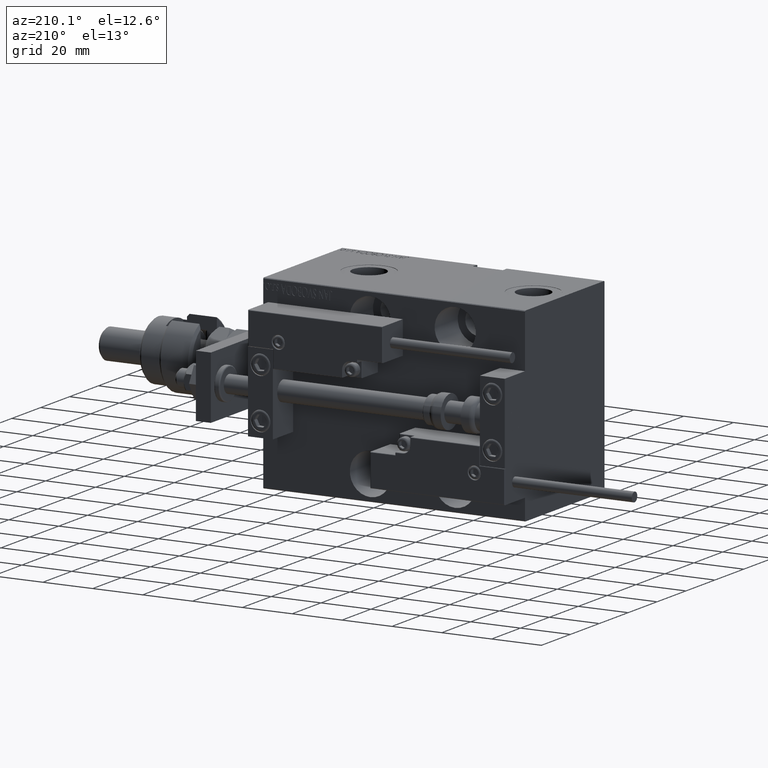
[diagram: clean part render]
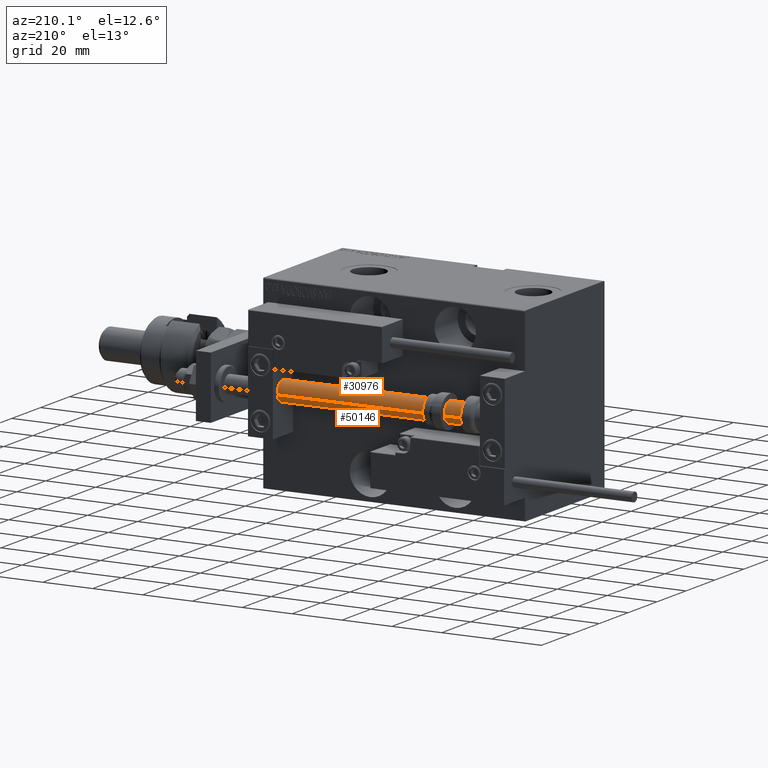
[diagram: same view with one multi-face feature highlighted, each face labeled with its STEP entity id]
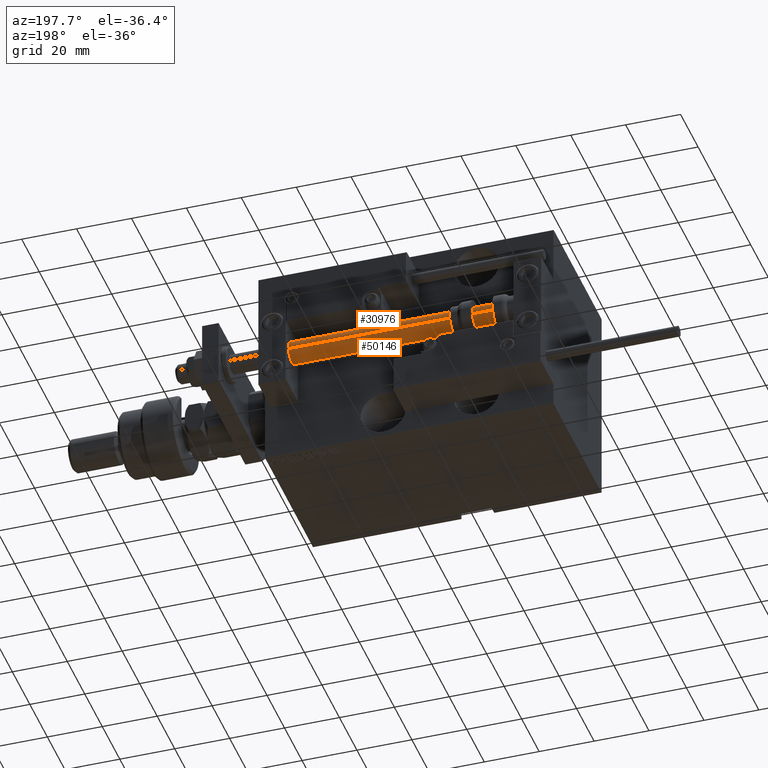
[diagram: same view with one multi-face feature highlighted, each face labeled with its STEP entity id]
A machine part, auxiliary view. The highlighted faces form ONE feature: a constant-radius fillet chain: 2 tangent blend faces with common blend radius 4 mm. The faces share edges in the B-rep.
A second angle (auxiliary view) of the same feature is appended — it is thin or edge-on in the first view.
Their STEP definitions:
[1] entity #50146 (Cylinder):
#402 = DIRECTION ( 'NONE',  ( 1.000000000000000000, 0.000000000000000000, 0.000000000000000000 ) ) ;
#653 = ORIENTED_EDGE ( 'NONE', *, *, #975, .F. ) ;
#975 = EDGE_CURVE ( 'NONE', #35196, #7315, #39113, .T. ) ;
#1119 = VERTEX_POINT ( 'NONE', #15255 ) ;
#1442 = DIRECTION ( 'NONE',  ( -0.000000000000000000, -0.000000000000000000, -1.000000000000000000 ) ) ;
#1579 = VECTOR ( 'NONE', #39067, 1000.000000000000000 ) ;
#3237 = CARTESIAN_POINT ( 'NONE',  ( 0.000000000000000000, 0.000000000000000000, 2.000000000000029310 ) ) ;
#6643 = LINE ( 'NONE', #14669, #1579 ) ;
#7315 = VERTEX_POINT ( 'NONE', #14645 ) ;
#8434 = DIRECTION ( 'NONE',  ( 0.000000000000000000, 0.000000000000000000, 1.000000000000000000 ) ) ;
#10747 = DIRECTION ( 'NONE',  ( -0.000000000000000000, -0.000000000000000000, 1.000000000000000000 ) ) ;
#13245 = ORIENTED_EDGE ( 'NONE', *, *, #29929, .T. ) ;
#14645 = CARTESIAN_POINT ( 'NONE',  ( -4.000000000000000000, 0.000000000000000000, 105.0000000000000000 ) ) ;
#14669 = CARTESIAN_POINT ( 'NONE',  ( 4.000000000000000000, 4.898587196589412829E-16, 105.0000000000000000 ) ) ;
#15255 = CARTESIAN_POINT ( 'NONE',  ( 4.000000000000000000, 4.898587196589412829E-16, 2.000000000000029310 ) ) ;
#17496 = CARTESIAN_POINT ( 'NONE',  ( 0.000000000000000000, 0.000000000000000000, 105.0000000000000000 ) ) ;
#18025 = DIRECTION ( 'NONE',  ( -1.000000000000000000, 0.000000000000000000, 0.000000000000000000 ) ) ;
#18544 = FACE_OUTER_BOUND ( 'NONE', #51843, .T. ) ;
#20036 = AXIS2_PLACEMENT_3D ( 'NONE', #17496, #1442, #18025 ) ;
#25235 = EDGE_CURVE ( 'NONE', #1119, #36170, #51716, .T. ) ;
#26070 = CYLINDRICAL_SURFACE ( 'NONE', #20036, 4.000000000000000000 ) ;
#29929 = EDGE_CURVE ( 'NONE', #35196, #1119, #6643, .T. ) ;
#32265 = ORIENTED_EDGE ( 'NONE', *, *, #25235, .T. ) ;
#32878 = AXIS2_PLACEMENT_3D ( 'NONE', #3237, #10747, #51453 ) ;
#35196 = VERTEX_POINT ( 'NONE', #46203 ) ;
#35596 = LINE ( 'NONE', #44696, #46426 ) ;
#36170 = VERTEX_POINT ( 'NONE', #51785 ) ;
#39067 = DIRECTION ( 'NONE',  ( -0.000000000000000000, -0.000000000000000000, -1.000000000000000000 ) ) ;
#39113 = CIRCLE ( 'NONE', #45961, 4.000000000000000000 ) ;
#40680 = DIRECTION ( 'NONE',  ( -0.000000000000000000, -0.000000000000000000, -1.000000000000000000 ) ) ;
#41849 = EDGE_CURVE ( 'NONE', #7315, #36170, #35596, .T. ) ;
#44696 = CARTESIAN_POINT ( 'NONE',  ( -4.000000000000000000, 0.000000000000000000, 105.0000000000000000 ) ) ;
#45112 = ORIENTED_EDGE ( 'NONE', *, *, #41849, .F. ) ;
#45394 = CARTESIAN_POINT ( 'NONE',  ( 0.000000000000000000, 0.000000000000000000, 105.0000000000000000 ) ) ;
#45961 = AXIS2_PLACEMENT_3D ( 'NONE', #45394, #8434, #402 ) ;
#46203 = CARTESIAN_POINT ( 'NONE',  ( 4.000000000000000000, 4.898587196589412829E-16, 105.0000000000000000 ) ) ;
#46426 = VECTOR ( 'NONE', #40680, 1000.000000000000000 ) ;
#50146 = ADVANCED_FACE ( 'NONE', ( #18544 ), #26070, .T. ) ;
#51453 = DIRECTION ( 'NONE',  ( 1.000000000000000000, 0.000000000000000000, 0.000000000000000000 ) ) ;
#51716 = CIRCLE ( 'NONE', #32878, 4.000000000000000000 ) ;
#51785 = CARTESIAN_POINT ( 'NONE',  ( -4.000000000000000000, 0.000000000000000000, 2.000000000000029310 ) ) ;
#51843 = EDGE_LOOP ( 'NONE', ( #653, #13245, #32265, #45112 ) ) ;
[2] entity #30976 (Cylinder):
#84 = CIRCLE ( 'NONE', #47935, 4.000000000000000000 ) ;
#1119 = VERTEX_POINT ( 'NONE', #15255 ) ;
#1579 = VECTOR ( 'NONE', #39067, 1000.000000000000000 ) ;
#1965 = ORIENTED_EDGE ( 'NONE', *, *, #43135, .T. ) ;
#6202 = DIRECTION ( 'NONE',  ( -0.000000000000000000, -0.000000000000000000, 1.000000000000000000 ) ) ;
#6643 = LINE ( 'NONE', #14669, #1579 ) ;
#6976 = EDGE_LOOP ( 'NONE', ( #39936, #16888, #19869, #1965 ) ) ;
#7315 = VERTEX_POINT ( 'NONE', #14645 ) ;
#7804 = FACE_OUTER_BOUND ( 'NONE', #6976, .T. ) ;
#12074 = DIRECTION ( 'NONE',  ( -1.000000000000000000, 0.000000000000000000, 0.000000000000000000 ) ) ;
#12213 = AXIS2_PLACEMENT_3D ( 'NONE', #42203, #6202, #16981 ) ;
#14645 = CARTESIAN_POINT ( 'NONE',  ( -4.000000000000000000, 0.000000000000000000, 105.0000000000000000 ) ) ;
#14669 = CARTESIAN_POINT ( 'NONE',  ( 4.000000000000000000, 4.898587196589412829E-16, 105.0000000000000000 ) ) ;
#15255 = CARTESIAN_POINT ( 'NONE',  ( 4.000000000000000000, 4.898587196589412829E-16, 2.000000000000029310 ) ) ;
#16888 = ORIENTED_EDGE ( 'NONE', *, *, #35006, .F. ) ;
#16981 = DIRECTION ( 'NONE',  ( 1.000000000000000000, 0.000000000000000000, 0.000000000000000000 ) ) ;
#19830 = CYLINDRICAL_SURFACE ( 'NONE', #34119, 4.000000000000000000 ) ;
#19869 = ORIENTED_EDGE ( 'NONE', *, *, #41849, .T. ) ;
#23964 = DIRECTION ( 'NONE',  ( 0.000000000000000000, 0.000000000000000000, 1.000000000000000000 ) ) ;
#24761 = DIRECTION ( 'NONE',  ( 1.000000000000000000, 0.000000000000000000, 0.000000000000000000 ) ) ;
#28675 = CARTESIAN_POINT ( 'NONE',  ( 0.000000000000000000, 0.000000000000000000, 105.0000000000000000 ) ) ;
#29929 = EDGE_CURVE ( 'NONE', #35196, #1119, #6643, .T. ) ;
#30976 = ADVANCED_FACE ( 'NONE', ( #7804 ), #19830, .T. ) ;
#34119 = AXIS2_PLACEMENT_3D ( 'NONE', #28675, #36725, #12074 ) ;
#35006 = EDGE_CURVE ( 'NONE', #7315, #35196, #84, .T. ) ;
#35196 = VERTEX_POINT ( 'NONE', #46203 ) ;
#35596 = LINE ( 'NONE', #44696, #46426 ) ;
#36170 = VERTEX_POINT ( 'NONE', #51785 ) ;
#36725 = DIRECTION ( 'NONE',  ( -0.000000000000000000, -0.000000000000000000, -1.000000000000000000 ) ) ;
#39067 = DIRECTION ( 'NONE',  ( -0.000000000000000000, -0.000000000000000000, -1.000000000000000000 ) ) ;
#39936 = ORIENTED_EDGE ( 'NONE', *, *, #29929, .F. ) ;
#40680 = DIRECTION ( 'NONE',  ( -0.000000000000000000, -0.000000000000000000, -1.000000000000000000 ) ) ;
#41849 = EDGE_CURVE ( 'NONE', #7315, #36170, #35596, .T. ) ;
#42203 = CARTESIAN_POINT ( 'NONE',  ( 0.000000000000000000, 0.000000000000000000, 2.000000000000029310 ) ) ;
#43135 = EDGE_CURVE ( 'NONE', #36170, #1119, #44727, .T. ) ;
#44343 = CARTESIAN_POINT ( 'NONE',  ( 0.000000000000000000, 0.000000000000000000, 105.0000000000000000 ) ) ;
#44696 = CARTESIAN_POINT ( 'NONE',  ( -4.000000000000000000, 0.000000000000000000, 105.0000000000000000 ) ) ;
#44727 = CIRCLE ( 'NONE', #12213, 4.000000000000000000 ) ;
#46203 = CARTESIAN_POINT ( 'NONE',  ( 4.000000000000000000, 4.898587196589412829E-16, 105.0000000000000000 ) ) ;
#46426 = VECTOR ( 'NONE', #40680, 1000.000000000000000 ) ;
#47935 = AXIS2_PLACEMENT_3D ( 'NONE', #44343, #23964, #24761 ) ;
#51785 = CARTESIAN_POINT ( 'NONE',  ( -4.000000000000000000, 0.000000000000000000, 2.000000000000029310 ) ) ;